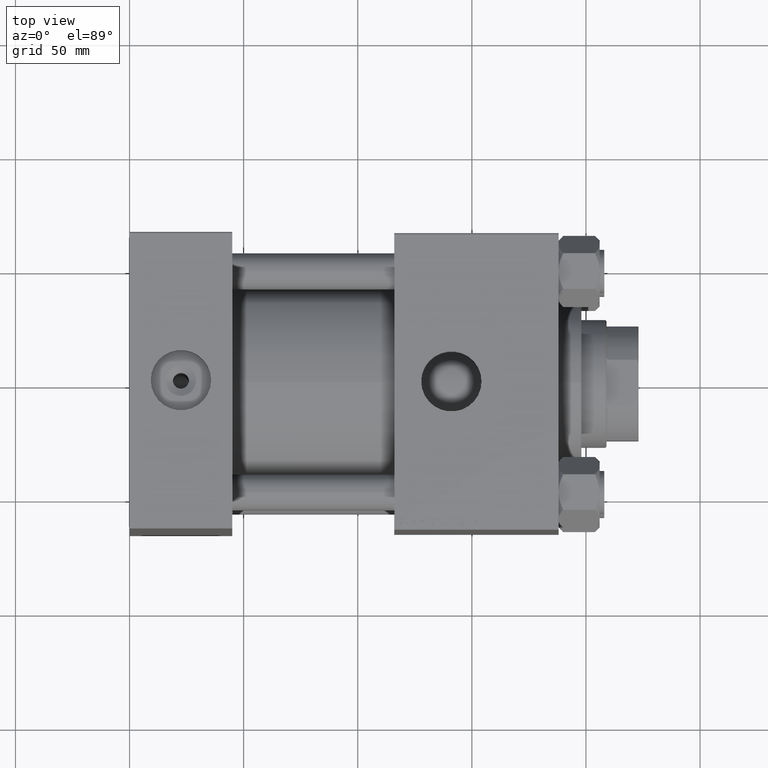
[diagram: clean part render]
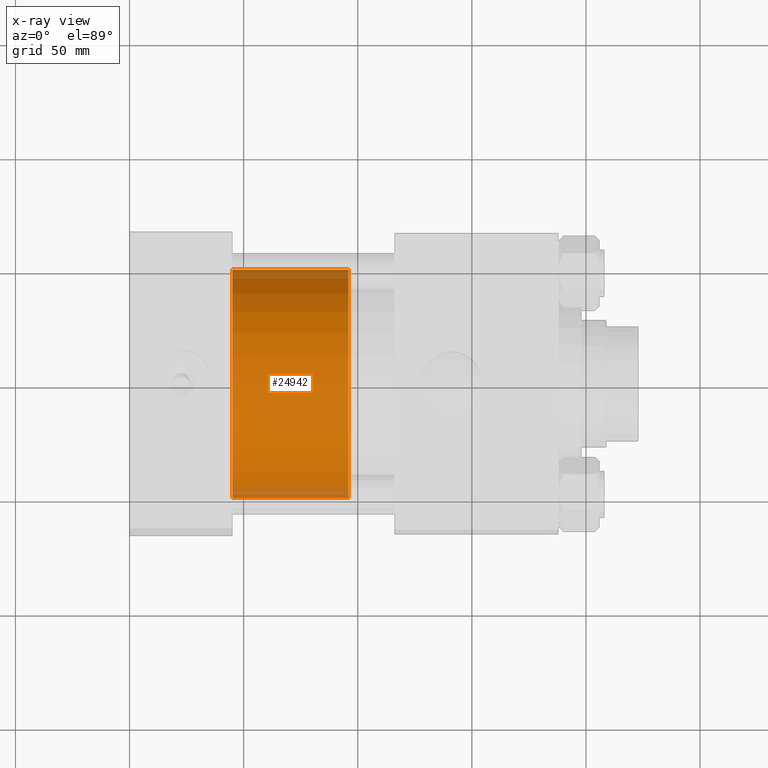
[diagram: x-ray — body ghosted, one internal face saturated and labeled with its STEP entity id]
A machine part, top view, then the same camera in x-ray: the body is ghosted and one INTERNAL B-rep face — a face not visible from any outside direction — is saturated and labeled: STEP entity #24942.
In plain terms, the highlighted cylindrical surface (partial cylindrical patch) has radius 50 mm, axis along (-1, 0, 0).
Its self-contained STEP definition (entity closure, byte-faithful):
#1178 = ORIENTED_EDGE ( 'NONE', *, *, #16825, .F. ) ;
#2622 = ORIENTED_EDGE ( 'NONE', *, *, #41708, .T. ) ;
#3732 = EDGE_CURVE ( 'NONE', #37660, #40808, #28018, .T. ) ;
#6219 = DIRECTION ( 'NONE',  ( -0.000000000000000000, -0.000000000000000000, -1.000000000000000000 ) ) ;
#10477 = CARTESIAN_POINT ( 'NONE',  ( 50.00000000000000000, 6.123233995736766085E-15, 51.00000000000000000 ) ) ;
#10808 = CARTESIAN_POINT ( 'NONE',  ( -50.00000000000000000, 0.000000000000000000, 51.00000000000000000 ) ) ;
#11601 = CARTESIAN_POINT ( 'NONE',  ( 50.00000000000000000, 6.123233995736766085E-15, 0.000000000000000000 ) ) ;
#12523 = AXIS2_PLACEMENT_3D ( 'NONE', #39390, #20508, #12838 ) ;
#12838 = DIRECTION ( 'NONE',  ( 1.000000000000000000, 0.000000000000000000, 0.000000000000000000 ) ) ;
#13779 = VECTOR ( 'NONE', #26582, 1000.000000000000000 ) ;
#14410 = CARTESIAN_POINT ( 'NONE',  ( -50.00000000000000000, 0.000000000000000000, 0.000000000000000000 ) ) ;
#14820 = LINE ( 'NONE', #10477, #13779 ) ;
#16825 = EDGE_CURVE ( 'NONE', #40808, #24390, #14820, .T. ) ;
#20508 = DIRECTION ( 'NONE',  ( 0.000000000000000000, 0.000000000000000000, 1.000000000000000000 ) ) ;
#21092 = AXIS2_PLACEMENT_3D ( 'NONE', #27711, #26726, #22897 ) ;
#22083 = CARTESIAN_POINT ( 'NONE',  ( -50.00000000000000000, 0.000000000000000000, 51.00000000000000000 ) ) ;
#22219 = VECTOR ( 'NONE', #6219, 1000.000000000000000 ) ;
#22897 = DIRECTION ( 'NONE',  ( 1.000000000000000000, 0.000000000000000000, 0.000000000000000000 ) ) ;
#24227 = EDGE_LOOP ( 'NONE', ( #1178, #31436, #2622, #26061 ) ) ;
#24390 = VERTEX_POINT ( 'NONE', #11601 ) ;
#24942 = ADVANCED_FACE ( 'NONE', ( #39984 ), #31589, .T. ) ;
#26014 = CIRCLE ( 'NONE', #21092, 50.00000000000000000 ) ;
#26061 = ORIENTED_EDGE ( 'NONE', *, *, #31906, .T. ) ;
#26582 = DIRECTION ( 'NONE',  ( -0.000000000000000000, -0.000000000000000000, -1.000000000000000000 ) ) ;
#26726 = DIRECTION ( 'NONE',  ( 0.000000000000000000, 0.000000000000000000, 1.000000000000000000 ) ) ;
#27508 = DIRECTION ( 'NONE',  ( -1.000000000000000000, 0.000000000000000000, 0.000000000000000000 ) ) ;
#27711 = CARTESIAN_POINT ( 'NONE',  ( 0.000000000000000000, 0.000000000000000000, 0.000000000000000000 ) ) ;
#28018 = CIRCLE ( 'NONE', #12523, 50.00000000000000000 ) ;
#28253 = CARTESIAN_POINT ( 'NONE',  ( 0.000000000000000000, 0.000000000000000000, 51.00000000000000000 ) ) ;
#28720 = CARTESIAN_POINT ( 'NONE',  ( 50.00000000000000000, 6.123233995736766085E-15, 51.00000000000000000 ) ) ;
#29975 = AXIS2_PLACEMENT_3D ( 'NONE', #28253, #47175, #27508 ) ;
#31436 = ORIENTED_EDGE ( 'NONE', *, *, #3732, .F. ) ;
#31589 = CYLINDRICAL_SURFACE ( 'NONE', #29975, 50.00000000000000000 ) ;
#31906 = EDGE_CURVE ( 'NONE', #40918, #24390, #26014, .T. ) ;
#37660 = VERTEX_POINT ( 'NONE', #22083 ) ;
#39390 = CARTESIAN_POINT ( 'NONE',  ( 0.000000000000000000, 0.000000000000000000, 51.00000000000000000 ) ) ;
#39984 = FACE_OUTER_BOUND ( 'NONE', #24227, .T. ) ;
#40693 = LINE ( 'NONE', #10808, #22219 ) ;
#40808 = VERTEX_POINT ( 'NONE', #28720 ) ;
#40918 = VERTEX_POINT ( 'NONE', #14410 ) ;
#41708 = EDGE_CURVE ( 'NONE', #37660, #40918, #40693, .T. ) ;
#47175 = DIRECTION ( 'NONE',  ( -0.000000000000000000, -0.000000000000000000, -1.000000000000000000 ) ) ;